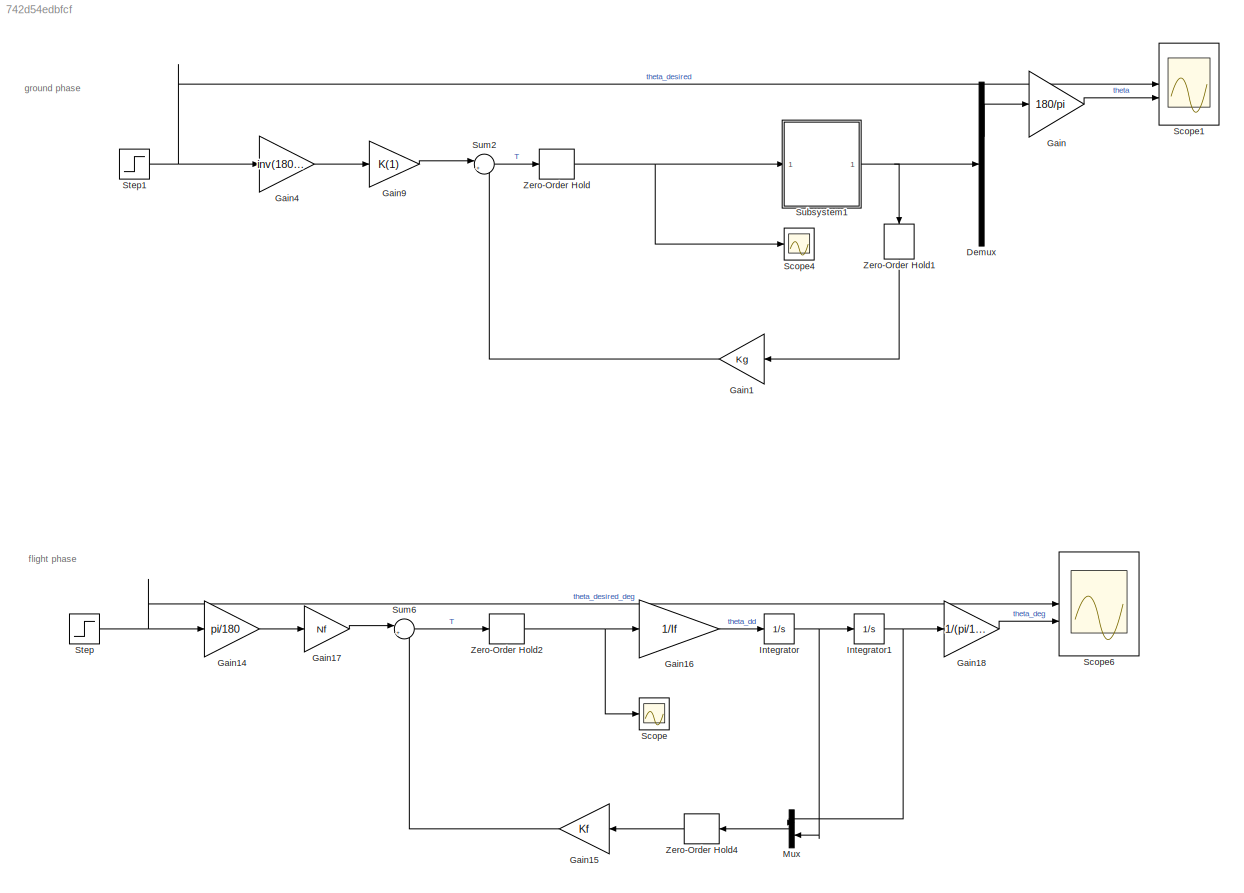
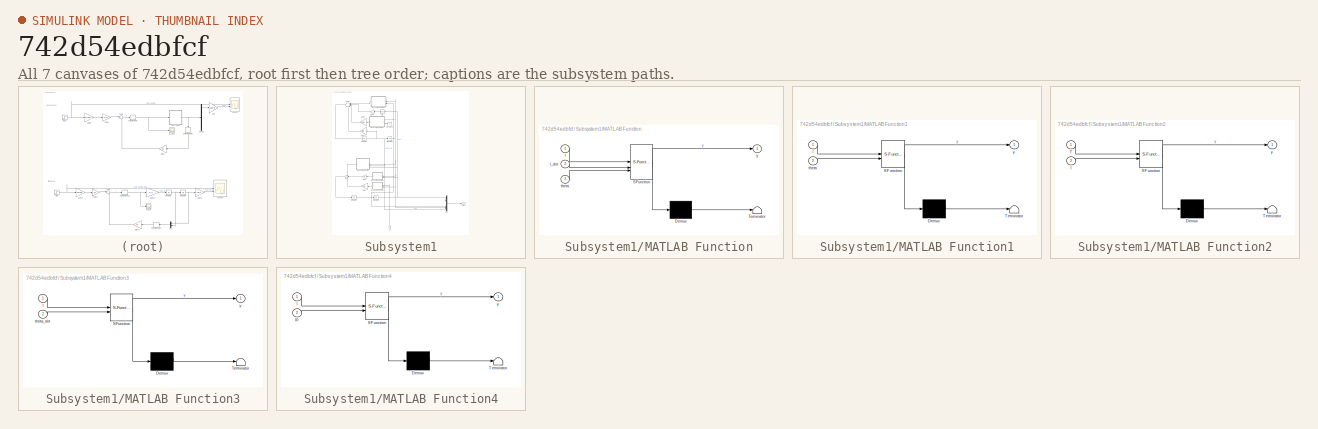
[diagram: thumbnail index - all 7 canvases of the model, root first then tree order]
MODEL slx_742d54edbfcf
KIND model
CONFIG AbsTol = auto
CONFIG EnableMultiTasking = off
CONFIG FixedStep = 10e-4
CONFIG MaxStep = auto
CONFIG MinStep = auto
CONFIG RelTol = 1e-3
CONFIG SampleTimeConstraint = Unconstrained
CONFIG SolverName = FixedStepAuto
CONFIG StartTime = 0.0
CONFIG StopTime = 0.5
BLOCK [Demux] Demux
BLOCK [Gain] Gain
  Gain = 180/pi
BLOCK [Gain] Gain1
  Gain = Kg
  Multiplication = Matrix(K*u)
  NameLocation = top
BLOCK [Gain] Gain14
  Gain = pi/180
BLOCK [Gain] Gain15
  Gain = Kf
  Multiplication = Matrix(K*u)
  NameLocation = top
BLOCK [Gain] Gain16
  Gain = 1/If
BLOCK [Gain] Gain17
  Gain = Nf
BLOCK [Gain] Gain18
  Gain = 1/(pi/180)
BLOCK [Gain] Gain4
  Gain = inv(180/pi)
BLOCK [Gain] Gain9
  Gain = K(1)
BLOCK [Integrator] Integrator
BLOCK [Integrator] Integrator1
  InitialCondition = deg2rad(95)
BLOCK [Mux] Mux
  DisplayOption = bar
  Inputs = 2
  NameLocation = top
BLOCK [Scope] Scope
  Floating = off
  NumInputPorts = 1
  ScopeSpecificationString = Simulink.scopes.TimeScopeBlockCfg('CurrentConfiguration', extmgr.ConfigurationSet(extmgr.Configuration('Core','General UI',true),extmgr.Configuration('Core','Source UI',true),extmgr.Configuration('Sources','WiredSimulink',true,'DataLoggingVariableName','ScopeData2'),extmgr.Configuration('Visuals','Time Domain',true,'SerializedDisplays',{struct('MinYLimReal','-1.16792','MaxYLimReal','0.51129','YLab...<+1414ch>
BLOCK [Scope] Scope1
  Floating = off
  NumInputPorts = 2
  ScopeSpecificationString = Simulink.scopes.TimeScopeBlockCfg('CurrentConfiguration', extmgr.ConfigurationSet(extmgr.Configuration('Core','General UI',true),extmgr.Configuration('Core','Source UI',true),extmgr.Configuration('Sources','WiredSimulink',true,'DataLoggingVariableName','ScopeData1'),extmgr.Configuration('Visuals','Time Domain',true,'SerializedDisplays',{struct('MinYLimReal','89.29861','MaxYLimReal','96.31249','YLa...<+1436ch>
BLOCK [Scope] Scope4
  Floating = off
  NumInputPorts = 1
  ScopeSpecificationString = Simulink.scopes.TimeScopeBlockCfg('CurrentConfiguration', extmgr.ConfigurationSet(extmgr.Configuration('Core','General UI',true),extmgr.Configuration('Core','Source UI',true),extmgr.Configuration('Sources','WiredSimulink',true,'DataLoggingVariableName','ScopeData4'),extmgr.Configuration('Visuals','Time Domain',true,'SerializedDisplays',{struct('MinYLimReal','-0.62345','MaxYLimReal','1.18038','YLab...<+1414ch>
BLOCK [Scope] Scope6
  Floating = off
  NumInputPorts = 2
  ScopeSpecificationString = Simulink.scopes.TimeScopeBlockCfg('CurrentConfiguration', extmgr.ConfigurationSet(extmgr.Configuration('Core','General UI',true),extmgr.Configuration('Core','Source UI',true),extmgr.Configuration('Sources','WiredSimulink',true,'DataLoggingVariableName','ScopeData6'),extmgr.Configuration('Visuals','Time Domain',true,'SerializedDisplays',{struct('MinYLimReal','89.13407','MaxYLimReal','95.65177','YLa...<+1471ch>
BLOCK [Step] Step
  After = 90
  SampleTime = 0
  Time = 0
BLOCK [Step] Step1
  After = 95
  SampleTime = 0
  Time = 0
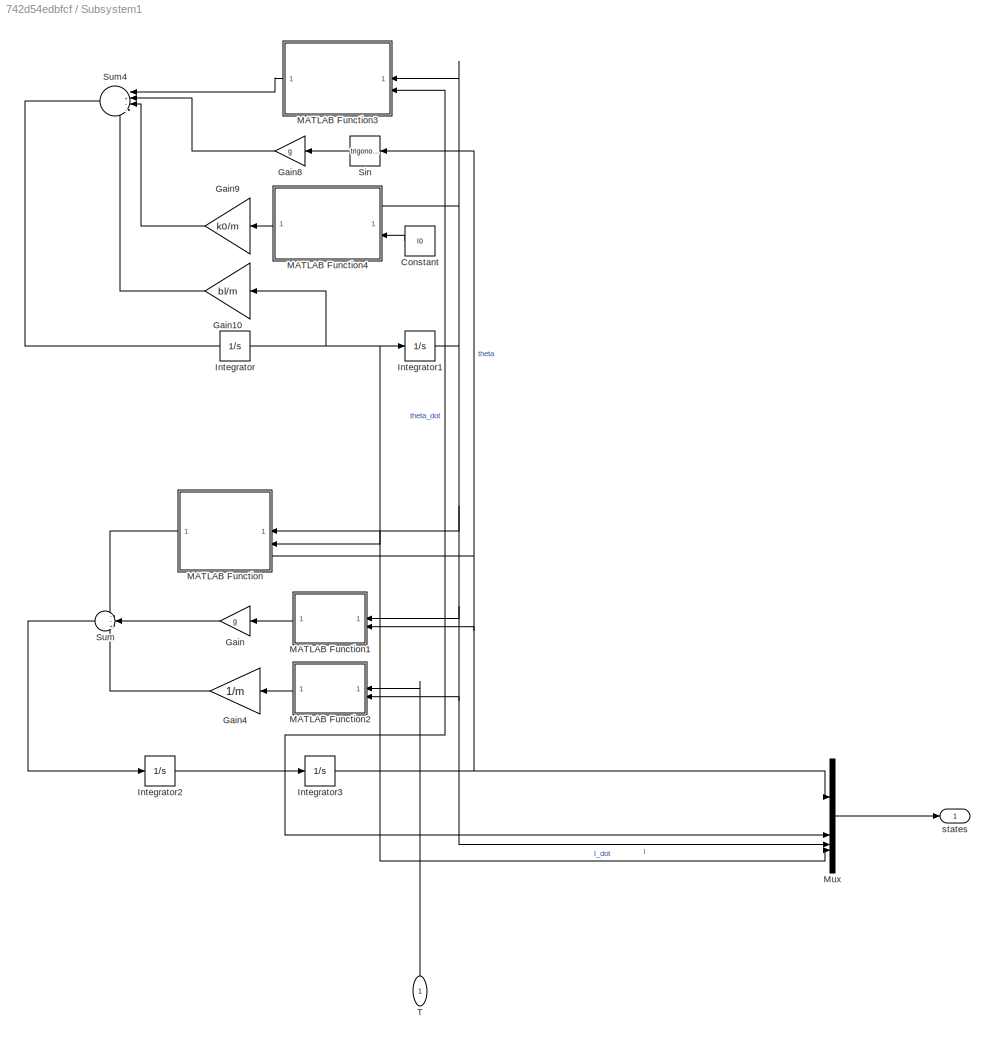
BLOCK [SubSystem] Subsystem1
BLOCK [Constant] Subsystem1/Constant
  NameLocation = top
  Value = l0
BLOCK [Gain] Subsystem1/Gain
  Gain = g
  NameLocation = top
BLOCK [Gain] Subsystem1/Gain10
  Gain = bl/m
  NameLocation = top
BLOCK [Gain] Subsystem1/Gain4
  Gain = 1/m
  NameLocation = top
BLOCK [Gain] Subsystem1/Gain8
  Gain = g
  NameLocation = top
BLOCK [Gain] Subsystem1/Gain9
  Gain = k0/m
  NameLocation = top
BLOCK [Integrator] Subsystem1/Integrator
  InitialCondition = 0.1
BLOCK [Integrator] Subsystem1/Integrator1
  InitialCondition = l0
BLOCK [Integrator] Subsystem1/Integrator2
BLOCK [Integrator] Subsystem1/Integrator3
  InitialCondition = 90*pi/180
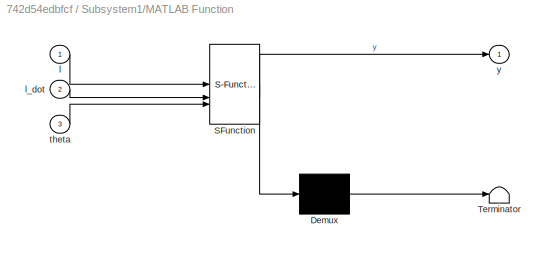
BLOCK [SubSystem] Subsystem1/MATLAB Function
  ErrorFcn = Stateflow.Translate.translate
  NameLocation = top
  PermitHierarchicalResolution = ExplicitOnly
  SFBlockType = MATLAB Function
  TreatAsAtomicUnit = on
BLOCK [Demux] Subsystem1/MATLAB Function/ Demux 
  Outputs = 1
BLOCK [S-Function] Subsystem1/MATLAB Function/ SFunction 
  EnableBusSupport = on
  FunctionName = sf_sfun
  PortCounts = [3 2]
  SFcnIsStateOwnerBlock = off
  SFunctionDeploymentMode = off
  Tag = Stateflow S-Function 6
BLOCK [Terminator] Subsystem1/MATLAB Function/ Terminator 
BLOCK [Inport] Subsystem1/MATLAB Function/l
BLOCK [Inport] Subsystem1/MATLAB Function/l_dot
  Port = 2
BLOCK [Inport] Subsystem1/MATLAB Function/theta
  Port = 3
BLOCK [Outport] Subsystem1/MATLAB Function/y
BLOCK [SubSystem] Subsystem1/MATLAB Function1
  ErrorFcn = Stateflow.Translate.translate
  NameLocation = top
  PermitHierarchicalResolution = ExplicitOnly
  SFBlockType = MATLAB Function
  TreatAsAtomicUnit = on
BLOCK [Demux] Subsystem1/MATLAB Function1/ Demux 
  Outputs = 1
BLOCK [S-Function] Subsystem1/MATLAB Function1/ SFunction 
  EnableBusSupport = on
  FunctionName = sf_sfun
  PortCounts = [2 2]
  SFcnIsStateOwnerBlock = off
  SFunctionDeploymentMode = off
  Tag = Stateflow S-Function 7
BLOCK [Terminator] Subsystem1/MATLAB Function1/ Terminator 
BLOCK [Inport] Subsystem1/MATLAB Function1/l
BLOCK [Inport] Subsystem1/MATLAB Function1/theta
  Port = 2
BLOCK [Outport] Subsystem1/MATLAB Function1/y
BLOCK [SubSystem] Subsystem1/MATLAB Function2
  ErrorFcn = Stateflow.Translate.translate
  NameLocation = top
  PermitHierarchicalResolution = ExplicitOnly
  SFBlockType = MATLAB Function
  TreatAsAtomicUnit = on
BLOCK [Demux] Subsystem1/MATLAB Function2/ Demux 
  Outputs = 1
BLOCK [S-Function] Subsystem1/MATLAB Function2/ SFunction 
  EnableBusSupport = on
  FunctionName = sf_sfun
  PortCounts = [2 2]
  SFcnIsStateOwnerBlock = off
  SFunctionDeploymentMode = off
  Tag = Stateflow S-Function 8
BLOCK [Terminator] Subsystem1/MATLAB Function2/ Terminator 
BLOCK [Inport] Subsystem1/MATLAB Function2/T
BLOCK [Inport] Subsystem1/MATLAB Function2/l
  Port = 2
BLOCK [Outport] Subsystem1/MATLAB Function2/y
BLOCK [SubSystem] Subsystem1/MATLAB Function3
  ErrorFcn = Stateflow.Translate.translate
  NameLocation = top
  PermitHierarchicalResolution = ExplicitOnly
  SFBlockType = MATLAB Function
  TreatAsAtomicUnit = on
BLOCK [Demux] Subsystem1/MATLAB Function3/ Demux 
  Outputs = 1
BLOCK [S-Function] Subsystem1/MATLAB Function3/ SFunction 
  EnableBusSupport = on
  FunctionName = sf_sfun
  PortCounts = [2 2]
  SFcnIsStateOwnerBlock = off
  SFunctionDeploymentMode = off
  Tag = Stateflow S-Function 9
BLOCK [Terminator] Subsystem1/MATLAB Function3/ Terminator 
BLOCK [Inport] Subsystem1/MATLAB Function3/l
BLOCK [Inport] Subsystem1/MATLAB Function3/theta_dot
  Port = 2
BLOCK [Outport] Subsystem1/MATLAB Function3/y
BLOCK [SubSystem] Subsystem1/MATLAB Function4
  ErrorFcn = Stateflow.Translate.translate
  NameLocation = top
  PermitHierarchicalResolution = ExplicitOnly
  SFBlockType = MATLAB Function
  TreatAsAtomicUnit = on
BLOCK [Demux] Subsystem1/MATLAB Function4/ Demux 
  Outputs = 1
BLOCK [S-Function] Subsystem1/MATLAB Function4/ SFunction 
  EnableBusSupport = on
  FunctionName = sf_sfun
  PortCounts = [2 2]
  SFcnIsStateOwnerBlock = off
  SFunctionDeploymentMode = off
  Tag = Stateflow S-Function 10
BLOCK [Terminator] Subsystem1/MATLAB Function4/ Terminator 
BLOCK [Inport] Subsystem1/MATLAB Function4/l
BLOCK [Inport] Subsystem1/MATLAB Function4/l0
  Port = 2
BLOCK [Outport] Subsystem1/MATLAB Function4/y
BLOCK [Mux] Subsystem1/Mux
  DisplayOption = bar
BLOCK [Trigonometry] Subsystem1/Sin
  NameLocation = top
BLOCK [Sum] Subsystem1/Sum
  Inputs = --+
  NameLocation = top
BLOCK [Sum] Subsystem1/Sum4
  Inputs = |+---
  NameLocation = top
BLOCK [Inport] Subsystem1/T
  NameLocation = right
BLOCK [Outport] Subsystem1/states
BLOCK [Sum] Sum2
  Inputs = |+-
BLOCK [Sum] Sum6
  Inputs = |+-
BLOCK [ZeroOrderHold] Zero-Order Hold
  SampleTime = Ts
BLOCK [ZeroOrderHold] Zero-Order Hold1
  NameLocation = left
  SampleTime = Ts
BLOCK [ZeroOrderHold] Zero-Order Hold2
  SampleTime = Ts
BLOCK [ZeroOrderHold] Zero-Order Hold4
  NameLocation = top
  SampleTime = Ts
ANNOTATION (root): flight phase
ANNOTATION (root): ground phase
LINE Demux:1 -> Gain:1
LINE Gain14:1 -> Gain17:1
LINE Gain15:1 -> Sum6:2
LINE Gain16:1 -> Integrator:1
LINE Gain17:1 -> Sum6:1
LINE Gain18:1 -> Scope6:2
LINE Gain1:1 -> Sum2:2
LINE Gain4:1 -> Gain9:1
LINE Gain9:1 -> Sum2:1
LINE Gain:1 -> Scope1:2
NET Integrator1:1 -> Gain18:1, Mux:1
NET Integrator:1 -> Integrator1:1, Mux:2
LINE Mux:1 -> Zero-Order Hold4:1
NET Step1:1 -> Gain4:1, Scope1:1
NET Step:1 -> Gain14:1, Scope6:1
LINE Subsystem1/Constant:1 -> Subsystem1/MATLAB Function4:2
LINE Subsystem1/Gain10:1 -> Subsystem1/Sum4:4
LINE Subsystem1/Gain4:1 -> Subsystem1/Sum:3
LINE Subsystem1/Gain8:1 -> Subsystem1/Sum4:2
LINE Subsystem1/Gain9:1 -> Subsystem1/Sum4:3
LINE Subsystem1/Gain:1 -> Subsystem1/Sum:2
NET Subsystem1/Integrator1:1 -> Subsystem1/MATLAB Function1:1, Subsystem1/MATLAB Function2:2, Subsystem1/MATLAB Function3:1, Subsystem1/MATLAB Function4:1, Subsystem1/MATLAB Function:1, Subsystem1/Mux:3
NET Subsystem1/Integrator2:1 -> Subsystem1/Integrator3:1, Subsystem1/MATLAB Function3:2, Subsystem1/Mux:2
NET Subsystem1/Integrator3:1 -> Subsystem1/MATLAB Function1:2, Subsystem1/MATLAB Function:3, Subsystem1/Mux:1, Subsystem1/Sin:1
NET Subsystem1/Integrator:1 -> Subsystem1/Gain10:1, Subsystem1/Integrator1:1, Subsystem1/MATLAB Function:2, Subsystem1/Mux:4
LINE Subsystem1/MATLAB Function1:1 -> Subsystem1/Gain:1
LINE Subsystem1/MATLAB Function2:1 -> Subsystem1/Gain4:1
LINE Subsystem1/MATLAB Function3:1 -> Subsystem1/Sum4:1
LINE Subsystem1/MATLAB Function4:1 -> Subsystem1/Gain9:1
LINE Subsystem1/MATLAB Function:1 -> Subsystem1/Sum:1
LINE Subsystem1/Mux:1 -> Subsystem1/states:1
LINE Subsystem1/Sin:1 -> Subsystem1/Gain8:1
LINE Subsystem1/Sum4:1 -> Subsystem1/Integrator:1
LINE Subsystem1/Sum:1 -> Subsystem1/Integrator2:1
LINE Subsystem1/T:1 -> Subsystem1/MATLAB Function2:1
NET Subsystem1:1 -> Demux:1, Zero-Order Hold1:1
LINE Sum2:1 -> Zero-Order Hold:1
LINE Sum6:1 -> Zero-Order Hold2:1
LINE Zero-Order Hold1:1 -> Gain1:1
NET Zero-Order Hold2:1 -> Gain16:1, Scope:1
LINE Zero-Order Hold4:1 -> Gain15:1
NET Zero-Order Hold:1 -> Scope4:1, Subsystem1:1
note: NET lines group one-source signal fan-out (src -> all destinations, sorted); 1:1 wires keep LINE
CHART Subsystem1/MATLAB Function1 states=1 transitions=1
  STATE_LABEL 'eML_blk_kernel()'
  STATE_LABEL 'SCRIPT:\nfunction y = fcn(l,theta)\n\ny = cos(theta)/l;\n'
CHART Subsystem1/MATLAB Function2 states=1 transitions=1
  STATE_LABEL 'eML_blk_kernel()'
  STATE_LABEL 'SCRIPT:\nfunction y = fcn(T,l)\n\ny = T/l^2;\n'
CHART Subsystem1/MATLAB Function3 states=1 transitions=1
  STATE_LABEL 'eML_blk_kernel()'
  STATE_LABEL 'SCRIPT:\nfunction y = fcn(l,theta_dot)\n\ny = l*theta_dot^2;\n'
CHART Subsystem1/MATLAB Function4 states=1 transitions=1
  STATE_LABEL 'eML_blk_kernel()'
  STATE_LABEL 'SCRIPT:\nfunction y = fcn(l,l0)\n\ny = l-l0;\n'
CHART Subsystem1/MATLAB Function states=1 transitions=1
  STATE_LABEL 'eML_blk_kernel()'
  STATE_LABEL 'SCRIPT:\nfunction y = fcn(l,l_dot,theta)\n\ny = 2*l_dot*theta/l;\n'
CHART  states=0 transitions=0
CHART  states=0 transitions=0
CHART  states=0 transitions=0
CHART  states=0 transitions=0
CHART  states=0 transitions=0
